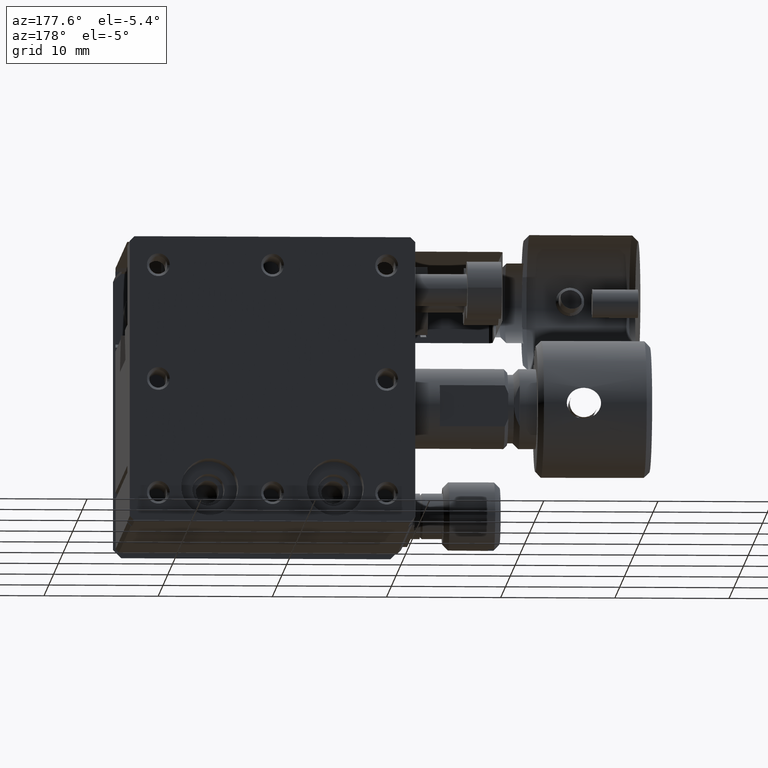
[diagram: clean part render]
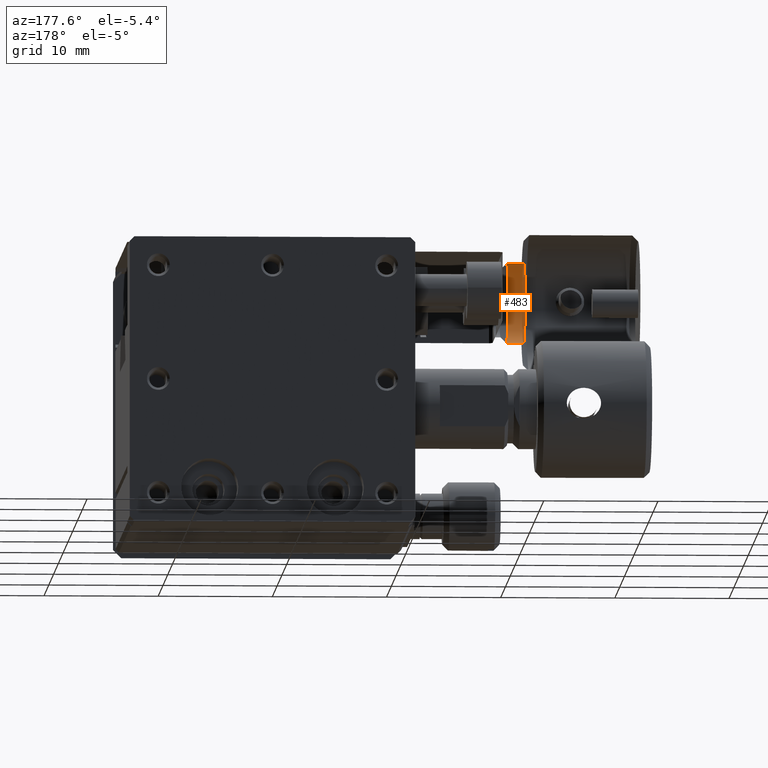
[diagram: same view with one face highlighted and labeled with its STEP entity id]
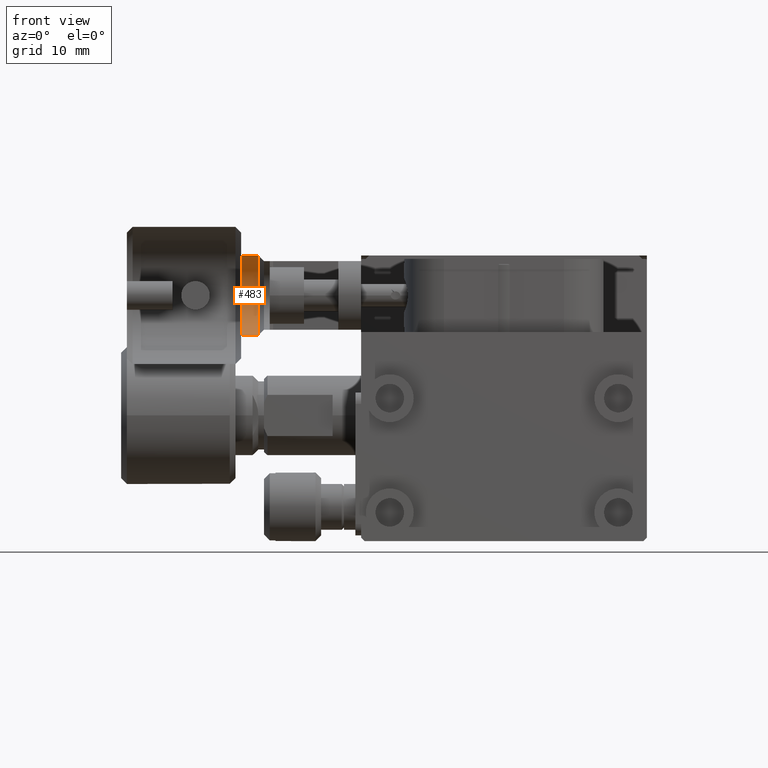
[diagram: same view with one face highlighted and labeled with its STEP entity id]
A machine part, auxiliary view. The second image highlights one B-rep face of the part: STEP entity #483.
A second angle (front view) of the same face is appended — the face is thin or edge-on in the first view.
In plain terms, the highlighted cylindrical surface (bore or boss wall) has radius 3.5 mm, axis along (-1, 0, 0).
Its self-contained STEP definition (entity closure, byte-faithful):
#184 = FACE_OUTER_BOUND ( 'NONE', #1448, .T. ) ;
#229 = CARTESIAN_POINT ( 'NONE',  ( -50.00000000000000000, 26.00000000000000000, -3.500000000000000000 ) ) ;
#245 = VERTEX_POINT ( 'NONE', #5853 ) ;
#319 = CYLINDRICAL_SURFACE ( 'NONE', #4193, 3.500000000000000000 ) ;
#483 = ADVANCED_FACE ( 'NONE', ( #184, #8817 ), #319, .F. ) ;
#714 = AXIS2_PLACEMENT_3D ( 'NONE', #8900, #1775, #5196 ) ;
#964 = EDGE_CURVE ( 'NONE', #245, #245, #1923, .T. ) ;
#1448 = EDGE_LOOP ( 'NONE', ( #2720 ) ) ;
#1775 = DIRECTION ( 'NONE',  ( 1.000000000000000000, -0.000000000000000000, -0.000000000000000000 ) ) ;
#1923 = CIRCLE ( 'NONE', #714, 3.500000000000000000 ) ;
#2238 = CARTESIAN_POINT ( 'NONE',  ( -9.000000000014551915, 26.00000000000000000, 0.000000000000000000 ) ) ;
#2246 = EDGE_CURVE ( 'NONE', #6664, #6664, #9066, .T. ) ;
#2720 = ORIENTED_EDGE ( 'NONE', *, *, #2246, .T. ) ;
#3197 = ORIENTED_EDGE ( 'NONE', *, *, #964, .F. ) ;
#4193 = AXIS2_PLACEMENT_3D ( 'NONE', #229, #6071, #8912 ) ;
#5196 = DIRECTION ( 'NONE',  ( 0.000000000000000000, 0.000000000000000000, 1.000000000000000000 ) ) ;
#5853 = CARTESIAN_POINT ( 'NONE',  ( -10.50000000000000178, 26.00000000000000000, 0.000000000000000000 ) ) ;
#6071 = DIRECTION ( 'NONE',  ( -1.000000000000000000, 0.000000000000000000, 0.000000000000000000 ) ) ;
#6664 = VERTEX_POINT ( 'NONE', #2238 ) ;
#6756 = EDGE_LOOP ( 'NONE', ( #3197 ) ) ;
#7249 = CARTESIAN_POINT ( 'NONE',  ( -9.000000000014551915, 26.00000000000000000, -3.500000000000000000 ) ) ;
#8051 = DIRECTION ( 'NONE',  ( 1.000000000000000000, -0.000000000000000000, -0.000000000000000000 ) ) ;
#8817 = FACE_OUTER_BOUND ( 'NONE', #6756, .T. ) ;
#8900 = CARTESIAN_POINT ( 'NONE',  ( -10.50000000000000178, 26.00000000000000000, -3.500000000000000000 ) ) ;
#8912 = DIRECTION ( 'NONE',  ( 0.000000000000000000, 0.000000000000000000, 1.000000000000000000 ) ) ;
#9066 = CIRCLE ( 'NONE', #9210, 3.500000000000000000 ) ;
#9210 = AXIS2_PLACEMENT_3D ( 'NONE', #7249, #8051, #9331 ) ;
#9331 = DIRECTION ( 'NONE',  ( 0.000000000000000000, 0.000000000000000000, 1.000000000000000000 ) ) ;